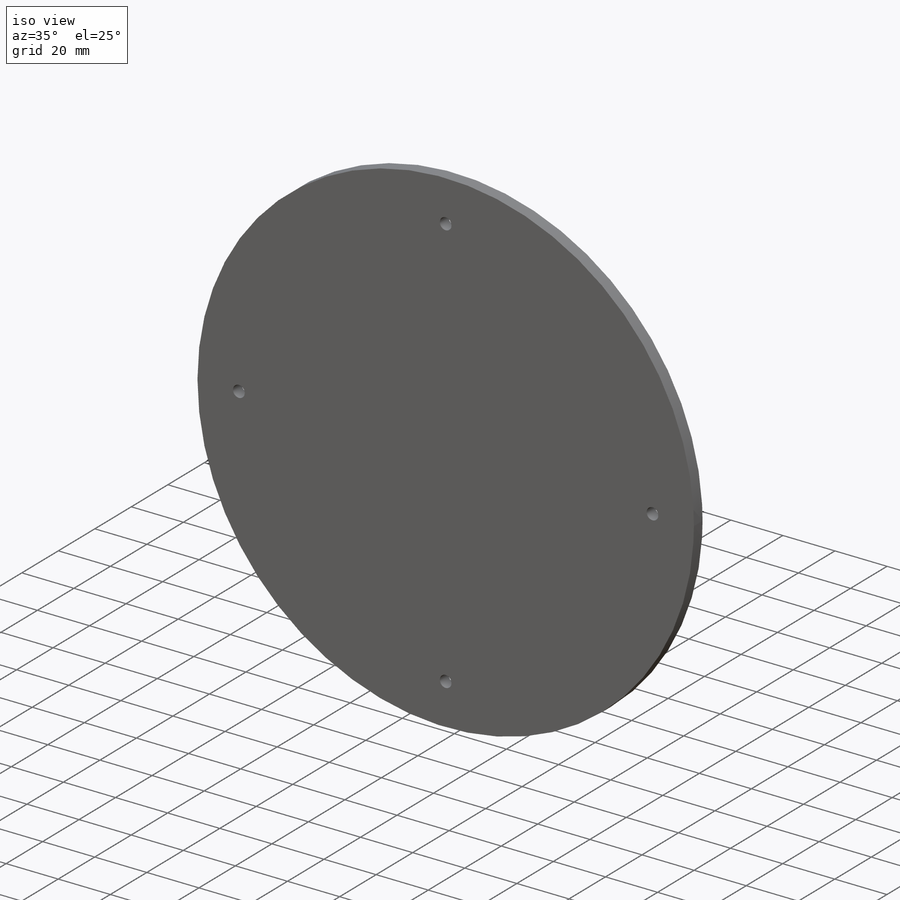
[diagram: iso view]
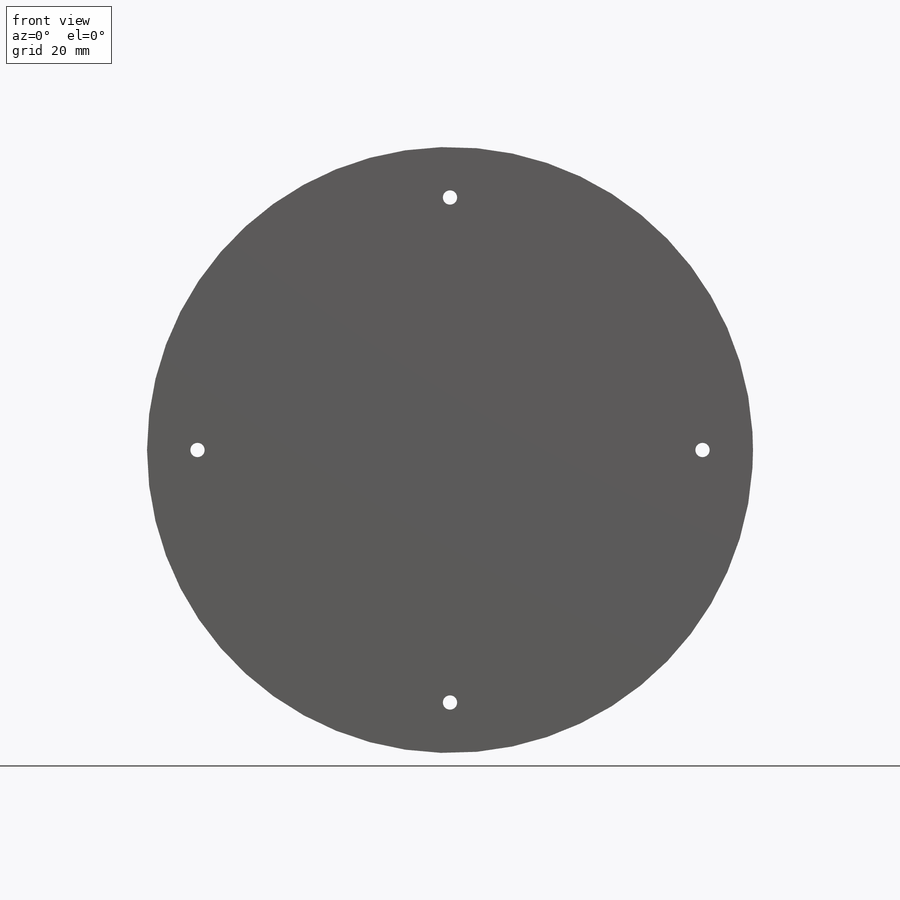
[diagram: front view]
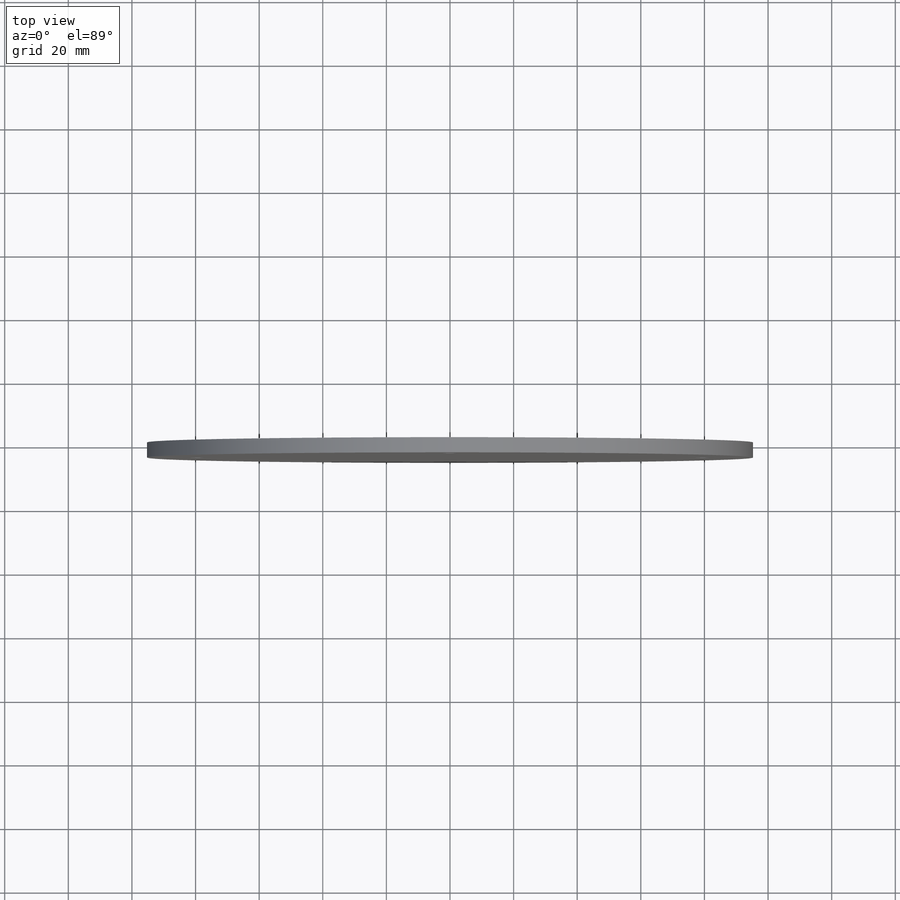
[diagram: top view]
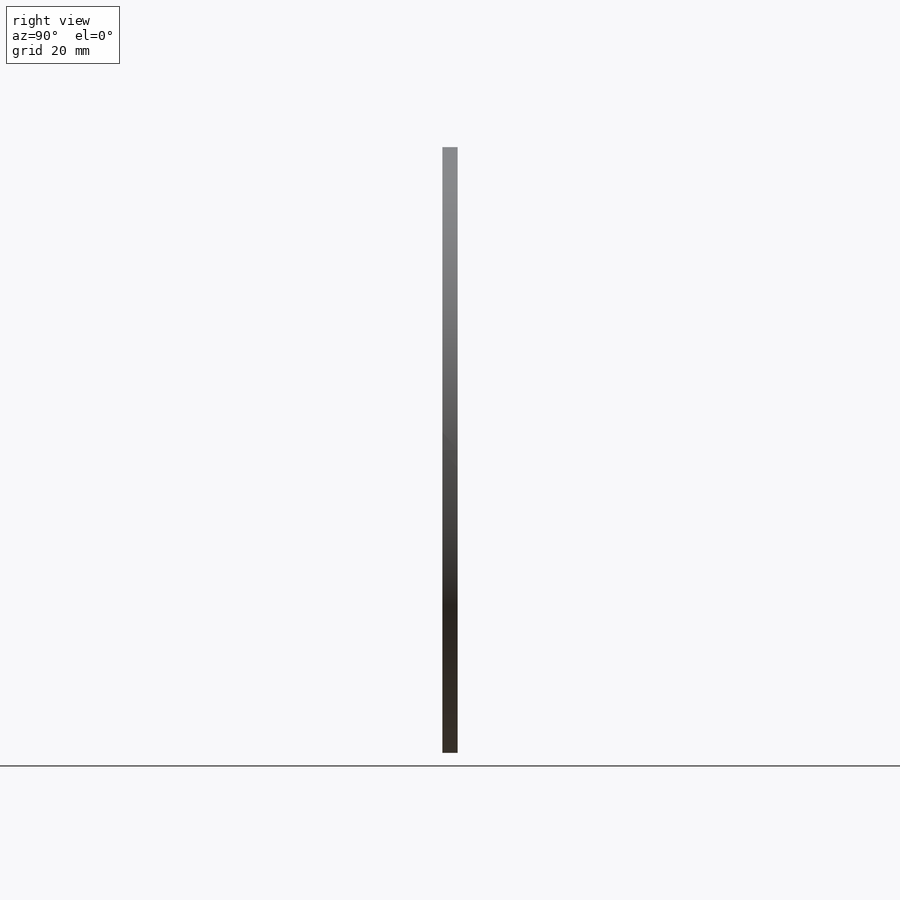
[diagram: right view]
SOLIDWORKS PART (.sldprt)
format: sldprt  version: not decoded by parser v0  size: 179,200 bytes
history: native  units: mm
features: thread x4, sketch x3, material x1, extrude x1, hole x1 (+11 scaffold rows collapsed)
feature tree (21):
  scaffold x11  (default folders/planes/origin — collapsed)
  material  "Epoxy, Unfilled"
  sketch  "Sketch1"  dims[D1=190.5mm]
  extrude  "Boss-Extrude1"  Depth=4.7625mm
  hole  "#12-24 Tapped Hole1"  Diameter=4.4958mm Depth=14.224mm
  sketch  "Sketch4"  dims[D1=88.9mm D2=88.9mm]
  sketch  "Sketch3"  dims[hole-wizard template sketch: 46 standard entries collapsed; hole parameters kept: c15.Tap Drill Dia.=4.4958mm c15.Tap Drill Depth=14.224mm c15.D3=~14.816244mm c15.Drill Angle=180.0deg]
  thread  "Hole Thread1"  Diameter=4.7625mm  [1 undecoded]
  thread  "Hole Thread2"  Diameter=4.7625mm  [1 undecoded]
  thread  "Hole Thread3"  Diameter=4.7625mm  [1 undecoded]
  thread  "Hole Thread4"  Diameter=4.7625mm  [1 undecoded]
decode coverage: 9 of 9 modeling features carry decoded parameters
note: ~ marks probable driven/reference dimensions
note: 4 parameter values undecoded
note: suppression state not decoded; provenance and decode notes live in map.json
